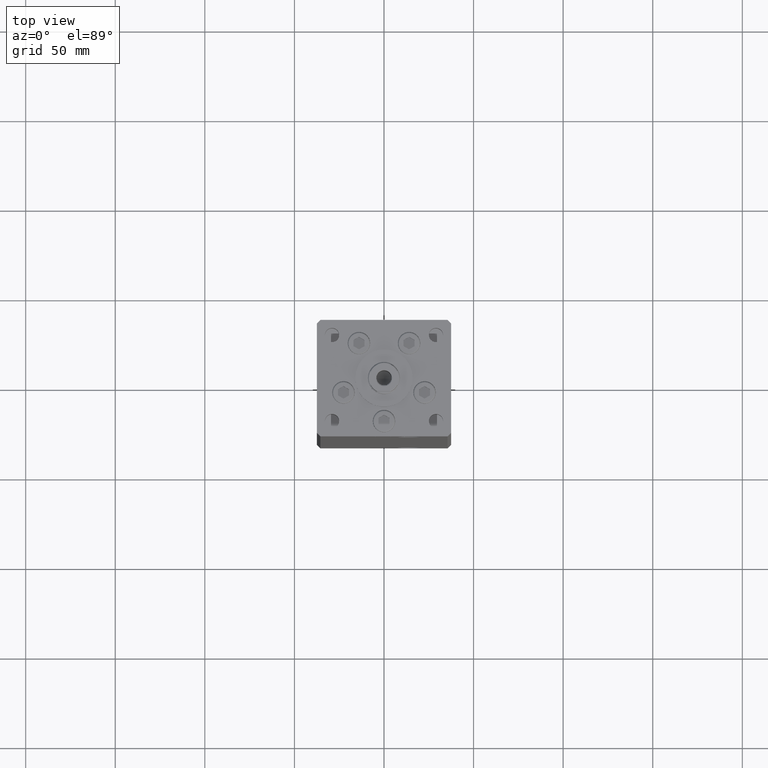
[diagram: clean part render]
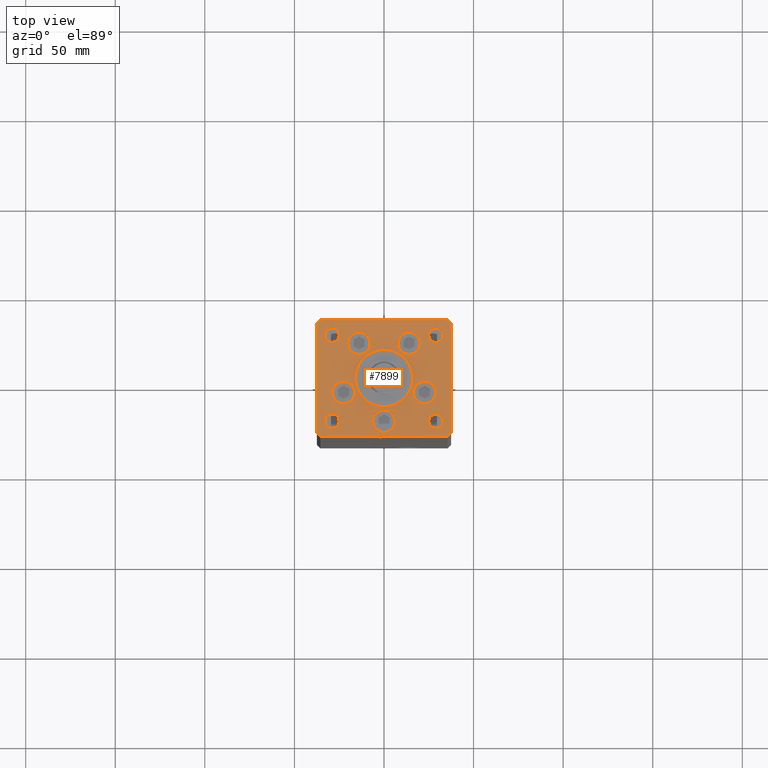
[diagram: same view with one face highlighted and labeled with its STEP entity id]
A machine part, top view. The second image highlights one B-rep face of the part: STEP entity #7899.
In plain terms, the highlighted planar face has unit normal (0, 0, 1).
Its self-contained STEP definition (entity closure, byte-faithful):
#557 = AXIS2_PLACEMENT_3D ( 'NONE', #30762, #22061, #10448 ) ;
#596 = AXIS2_PLACEMENT_3D ( 'NONE', #48682, #37566, #40740 ) ;
#688 = CARTESIAN_POINT ( 'NONE',  ( -29.00000000000000000, -23.99999999999999645, 0.000000000000000000 ) ) ;
#727 = DIRECTION ( 'NONE',  ( 2.275047181608926165E-16, -1.000000000000000000, 0.000000000000000000 ) ) ;
#1214 = ORIENTED_EDGE ( 'NONE', *, *, #48127, .T. ) ;
#1327 = CARTESIAN_POINT ( 'NONE',  ( -22.62741699796953299, -8.000000000000000000, 0.000000000000000000 ) ) ;
#1448 = FACE_BOUND ( 'NONE', #20306, .T. ) ;
#1476 = DIRECTION ( 'NONE',  ( 1.000000000000000000, 0.000000000000000000, 0.000000000000000000 ) ) ;
#2260 = CARTESIAN_POINT ( 'NONE',  ( -20.24106857963324302, 19.50000000000000000, 0.000000000000000000 ) ) ;
#2325 = EDGE_CURVE ( 'NONE', #6394, #44486, #26696, .T. ) ;
#2693 = CARTESIAN_POINT ( 'NONE',  ( 16.00000000000000355, -4.979459025271462852E-15, 0.000000000000000000 ) ) ;
#2796 = EDGE_CURVE ( 'NONE', #4544, #24338, #48583, .T. ) ;
#3111 = EDGE_CURVE ( 'NONE', #35040, #17228, #31773, .T. ) ;
#3907 = EDGE_CURVE ( 'NONE', #33941, #45500, #19987, .T. ) ;
#4052 = VECTOR ( 'NONE', #30437, 1000.000000000000000 ) ;
#4126 = ORIENTED_EDGE ( 'NONE', *, *, #27105, .T. ) ;
#4447 = DIRECTION ( 'NONE',  ( 0.000000000000000000, 0.000000000000000000, 1.000000000000000000 ) ) ;
#4544 = VERTEX_POINT ( 'NONE', #51939 ) ;
#4678 = LINE ( 'NONE', #21551, #29474 ) ;
#4769 = AXIS2_PLACEMENT_3D ( 'NONE', #30691, #9858, #6679 ) ;
#4895 = CARTESIAN_POINT ( 'NONE',  ( -35.50000000000000711, 32.49999999999997868, 0.000000000000000000 ) ) ;
#5204 = VERTEX_POINT ( 'NONE', #28867 ) ;
#5321 = ORIENTED_EDGE ( 'NONE', *, *, #44479, .F. ) ;
#5668 = CIRCLE ( 'NONE', #51192, 4.000000000000000000 ) ;
#5900 = EDGE_CURVE ( 'NONE', #36694, #5204, #20777, .T. ) ;
#5916 = FACE_BOUND ( 'NONE', #6787, .T. ) ;
#6249 = VECTOR ( 'NONE', #40369, 1000.000000000000000 ) ;
#6277 = VERTEX_POINT ( 'NONE', #15645 ) ;
#6394 = VERTEX_POINT ( 'NONE', #24848 ) ;
#6397 = LINE ( 'NONE', #34900, #35290 ) ;
#6417 = CARTESIAN_POINT ( 'NONE',  ( 35.50000000000000000, 32.49999999999999289, 0.000000000000000000 ) ) ;
#6530 = AXIS2_PLACEMENT_3D ( 'NONE', #14490, #23449, #46953 ) ;
#6679 = DIRECTION ( 'NONE',  ( 1.000000000000000000, 0.000000000000000000, 0.000000000000000000 ) ) ;
#6787 = EDGE_LOOP ( 'NONE', ( #9143, #13544 ) ) ;
#6943 = EDGE_LOOP ( 'NONE', ( #9883, #42840 ) ) ;
#7503 = EDGE_CURVE ( 'NONE', #41318, #41640, #19983, .T. ) ;
#7625 = AXIS2_PLACEMENT_3D ( 'NONE', #49043, #4447, #12884 ) ;
#7849 = EDGE_CURVE ( 'NONE', #17228, #35040, #25022, .T. ) ;
#7899 = ADVANCED_FACE ( 'NONE', ( #25707, #25453, #45509, #29414, #18322, #10142, #1448, #9878, #45770, #41537, #5916 ), #22268, .T. ) ;
#8186 = CARTESIAN_POINT ( 'NONE',  ( 37.50000000000000711, 30.50000000000001421, 0.000000000000000000 ) ) ;
#8601 = EDGE_CURVE ( 'NONE', #24338, #4544, #11579, .T. ) ;
#8905 = CARTESIAN_POINT ( 'NONE',  ( 37.50000000000000711, 30.50000000000001421, 0.000000000000000000 ) ) ;
#9031 = ORIENTED_EDGE ( 'NONE', *, *, #17766, .F. ) ;
#9143 = ORIENTED_EDGE ( 'NONE', *, *, #42042, .T. ) ;
#9146 = CARTESIAN_POINT ( 'NONE',  ( 16.37741699796953299, -8.000000000000000000, 0.000000000000000000 ) ) ;
#9545 = EDGE_CURVE ( 'NONE', #44798, #31017, #39374, .T. ) ;
#9858 = DIRECTION ( 'NONE',  ( 0.000000000000000000, 0.000000000000000000, 1.000000000000000000 ) ) ;
#9878 = FACE_BOUND ( 'NONE', #44645, .T. ) ;
#9883 = ORIENTED_EDGE ( 'NONE', *, *, #2796, .F. ) ;
#10080 = DIRECTION ( 'NONE',  ( 0.000000000000000000, 0.000000000000000000, 1.000000000000000000 ) ) ;
#10107 = AXIS2_PLACEMENT_3D ( 'NONE', #16191, #48375, #36483 ) ;
#10142 = FACE_BOUND ( 'NONE', #41950, .T. ) ;
#10448 = DIRECTION ( 'NONE',  ( 1.000000000000000000, 0.000000000000000000, 0.000000000000000000 ) ) ;
#10658 = CARTESIAN_POINT ( 'NONE',  ( -29.00000000000000000, -23.99999999999999645, 0.000000000000000000 ) ) ;
#10851 = EDGE_CURVE ( 'NONE', #38221, #30694, #14985, .T. ) ;
#11030 = ORIENTED_EDGE ( 'NONE', *, *, #44139, .F. ) ;
#11579 = CIRCLE ( 'NONE', #6530, 6.250000000000000000 ) ;
#11767 = DIRECTION ( 'NONE',  ( 0.000000000000000000, 0.000000000000000000, 1.000000000000000000 ) ) ;
#11779 = EDGE_LOOP ( 'NONE', ( #24460, #14328 ) ) ;
#12010 = ORIENTED_EDGE ( 'NONE', *, *, #2325, .F. ) ;
#12373 = VERTEX_POINT ( 'NONE', #45632 ) ;
#12523 = CIRCLE ( 'NONE', #40310, 16.00000000000000355 ) ;
#12696 = VERTEX_POINT ( 'NONE', #25502 ) ;
#12884 = DIRECTION ( 'NONE',  ( 1.000000000000000000, 0.000000000000000000, 0.000000000000000000 ) ) ;
#13055 = CARTESIAN_POINT ( 'NONE',  ( -29.00000000000000000, 24.00000000000000711, 0.000000000000000000 ) ) ;
#13276 = CIRCLE ( 'NONE', #47873, 6.250000000000000000 ) ;
#13544 = ORIENTED_EDGE ( 'NONE', *, *, #48558, .T. ) ;
#14091 = DIRECTION ( 'NONE',  ( -0.000000000000000000, 0.000000000000000000, 1.000000000000000000 ) ) ;
#14121 = CARTESIAN_POINT ( 'NONE',  ( 22.62741699796953299, -8.000000000000000000, 0.000000000000000000 ) ) ;
#14328 = ORIENTED_EDGE ( 'NONE', *, *, #10851, .F. ) ;
#14490 = CARTESIAN_POINT ( 'NONE',  ( -13.99106857963324124, 19.50000000000000000, 0.000000000000000000 ) ) ;
#14776 = DIRECTION ( 'NONE',  ( 0.7071067811865463515, 0.7071067811865487940, 0.000000000000000000 ) ) ;
#14887 = DIRECTION ( 'NONE',  ( 0.000000000000000000, 0.000000000000000000, 1.000000000000000000 ) ) ;
#14921 = CARTESIAN_POINT ( 'NONE',  ( 29.00000000000000355, -23.99999999999999645, 0.000000000000000000 ) ) ;
#14955 = ORIENTED_EDGE ( 'NONE', *, *, #5900, .F. ) ;
#14985 = CIRCLE ( 'NONE', #38613, 6.250000000000001776 ) ;
#15010 = CARTESIAN_POINT ( 'NONE',  ( -25.00000000000000000, 24.00000000000000711, 0.000000000000000000 ) ) ;
#15239 = EDGE_CURVE ( 'NONE', #6277, #38269, #4678, .T. ) ;
#15645 = CARTESIAN_POINT ( 'NONE',  ( -37.50000000000001421, 30.50000000000000000, 0.000000000000000000 ) ) ;
#15782 = CIRCLE ( 'NONE', #49450, 4.000000000000000000 ) ;
#16191 = CARTESIAN_POINT ( 'NONE',  ( 22.62741699796953299, -8.000000000000000000, 0.000000000000000000 ) ) ;
#16212 = EDGE_CURVE ( 'NONE', #30694, #38221, #48886, .T. ) ;
#16268 = EDGE_CURVE ( 'NONE', #41640, #41318, #35428, .T. ) ;
#16655 = AXIS2_PLACEMENT_3D ( 'NONE', #1327, #33777, #42200 ) ;
#16739 = ORIENTED_EDGE ( 'NONE', *, *, #15239, .T. ) ;
#16805 = DIRECTION ( 'NONE',  ( 1.000000000000000000, 0.000000000000000000, 0.000000000000000000 ) ) ;
#17188 = CARTESIAN_POINT ( 'NONE',  ( 20.24106857963324302, 19.50000000000000000, 0.000000000000000000 ) ) ;
#17228 = VERTEX_POINT ( 'NONE', #37270 ) ;
#17696 = DIRECTION ( 'NONE',  ( 0.000000000000000000, 0.000000000000000000, 1.000000000000000000 ) ) ;
#17766 = EDGE_CURVE ( 'NONE', #51369, #19840, #33768, .T. ) ;
#18322 = FACE_BOUND ( 'NONE', #24518, .T. ) ;
#18820 = VECTOR ( 'NONE', #14776, 1000.000000000000000 ) ;
#18898 = VECTOR ( 'NONE', #28004, 1000.000000000000000 ) ;
#19036 = VERTEX_POINT ( 'NONE', #8905 ) ;
#19386 = DIRECTION ( 'NONE',  ( -1.000000000000000000, 0.000000000000000000, 0.000000000000000000 ) ) ;
#19840 = VERTEX_POINT ( 'NONE', #17188 ) ;
#19983 = CIRCLE ( 'NONE', #50310, 6.250000000000000000 ) ;
#19987 = CIRCLE ( 'NONE', #48623, 3.999999999999996447 ) ;
#20306 = EDGE_LOOP ( 'NONE', ( #36116, #45353 ) ) ;
#20777 = CIRCLE ( 'NONE', #48581, 16.00000000000000355 ) ;
#21551 = CARTESIAN_POINT ( 'NONE',  ( -37.50000000000001421, 30.50000000000000000, 0.000000000000000000 ) ) ;
#21911 = LINE ( 'NONE', #30868, #18820 ) ;
#22061 = DIRECTION ( 'NONE',  ( 0.000000000000000000, 0.000000000000000000, 1.000000000000000000 ) ) ;
#22268 = PLANE ( 'NONE',  #28377 ) ;
#22593 = DIRECTION ( 'NONE',  ( 0.000000000000000000, 0.000000000000000000, 1.000000000000000000 ) ) ;
#22684 = CARTESIAN_POINT ( 'NONE',  ( 35.50000000000000000, 32.49999999999999289, 0.000000000000000000 ) ) ;
#22760 = CARTESIAN_POINT ( 'NONE',  ( 6.250000000000000000, -24.00000000000001066, 0.000000000000000000 ) ) ;
#23307 = VERTEX_POINT ( 'NONE', #28232 ) ;
#23449 = DIRECTION ( 'NONE',  ( 0.000000000000000000, 0.000000000000000000, 1.000000000000000000 ) ) ;
#23483 = EDGE_LOOP ( 'NONE', ( #5321, #9031 ) ) ;
#23543 = VERTEX_POINT ( 'NONE', #32918 ) ;
#23656 = DIRECTION ( 'NONE',  ( 1.000000000000000000, 0.000000000000000000, 0.000000000000000000 ) ) ;
#23813 = CIRCLE ( 'NONE', #36459, 3.999999999999996447 ) ;
#23816 = EDGE_LOOP ( 'NONE', ( #32167, #36139 ) ) ;
#24031 = LINE ( 'NONE', #48066, #18898 ) ;
#24338 = VERTEX_POINT ( 'NONE', #2260 ) ;
#24460 = ORIENTED_EDGE ( 'NONE', *, *, #16212, .F. ) ;
#24518 = EDGE_LOOP ( 'NONE', ( #24782, #41908 ) ) ;
#24705 = ORIENTED_EDGE ( 'NONE', *, *, #28296, .T. ) ;
#24782 = ORIENTED_EDGE ( 'NONE', *, *, #16268, .F. ) ;
#24848 = CARTESIAN_POINT ( 'NONE',  ( 33.00000000000000000, 24.00000000000000355, 0.000000000000000000 ) ) ;
#25022 = CIRCLE ( 'NONE', #48618, 4.000000000000000000 ) ;
#25453 = FACE_BOUND ( 'NONE', #6943, .T. ) ;
#25496 = CARTESIAN_POINT ( 'NONE',  ( -37.50000000000000000, -30.50000000000004263, 0.000000000000000000 ) ) ;
#25502 = CARTESIAN_POINT ( 'NONE',  ( 35.50000000000001421, -32.49999999999992184, 0.000000000000000000 ) ) ;
#25707 = FACE_BOUND ( 'NONE', #47761, .T. ) ;
#26239 = DIRECTION ( 'NONE',  ( 1.000000000000000000, 0.000000000000000000, 0.000000000000000000 ) ) ;
#26696 = CIRCLE ( 'NONE', #4769, 4.000000000000000000 ) ;
#27105 = EDGE_CURVE ( 'NONE', #38269, #50649, #31881, .T. ) ;
#28004 = DIRECTION ( 'NONE',  ( 1.000000000000000000, 1.172770800660376149E-15, 0.000000000000000000 ) ) ;
#28232 = CARTESIAN_POINT ( 'NONE',  ( -35.50000000000000711, 32.49999999999997868, 0.000000000000000000 ) ) ;
#28296 = EDGE_CURVE ( 'NONE', #23307, #6277, #33650, .T. ) ;
#28348 = DIRECTION ( 'NONE',  ( 1.000000000000000000, 0.000000000000000000, 0.000000000000000000 ) ) ;
#28377 = AXIS2_PLACEMENT_3D ( 'NONE', #37577, #14091, #26239 ) ;
#28867 = CARTESIAN_POINT ( 'NONE',  ( -16.00000000000000355, -6.938893903907228378E-15, 0.000000000000000000 ) ) ;
#28940 = EDGE_CURVE ( 'NONE', #45500, #33941, #23813, .T. ) ;
#29150 = DIRECTION ( 'NONE',  ( -1.000000000000000000, 0.000000000000000000, 0.000000000000000000 ) ) ;
#29414 = FACE_BOUND ( 'NONE', #11779, .T. ) ;
#29474 = VECTOR ( 'NONE', #727, 1000.000000000000000 ) ;
#29694 = DIRECTION ( 'NONE',  ( -0.7071067811865524577, -0.7071067811865426878, 0.000000000000000000 ) ) ;
#29812 = CARTESIAN_POINT ( 'NONE',  ( 13.99106857963324124, 19.50000000000000000, 0.000000000000000000 ) ) ;
#29870 = DIRECTION ( 'NONE',  ( 1.000000000000000000, 0.000000000000000000, 0.000000000000000000 ) ) ;
#30089 = EDGE_CURVE ( 'NONE', #12696, #12373, #21911, .T. ) ;
#30437 = DIRECTION ( 'NONE',  ( -1.000000000000000000, -1.954618001100627573E-16, 0.000000000000000000 ) ) ;
#30691 = CARTESIAN_POINT ( 'NONE',  ( 29.00000000000000000, 24.00000000000000355, 0.000000000000000000 ) ) ;
#30694 = VERTEX_POINT ( 'NONE', #36707 ) ;
#30762 = CARTESIAN_POINT ( 'NONE',  ( -13.99106857963324124, 19.50000000000000000, 0.000000000000000000 ) ) ;
#30868 = CARTESIAN_POINT ( 'NONE',  ( 35.50000000000001421, -32.49999999999992184, 0.000000000000000000 ) ) ;
#30878 = CARTESIAN_POINT ( 'NONE',  ( -35.50000000000001421, -32.50000000000000711, 0.000000000000000000 ) ) ;
#31017 = VERTEX_POINT ( 'NONE', #47165 ) ;
#31773 = CIRCLE ( 'NONE', #596, 4.000000000000000000 ) ;
#31881 = LINE ( 'NONE', #43757, #35569 ) ;
#31924 = AXIS2_PLACEMENT_3D ( 'NONE', #50309, #22593, #47152 ) ;
#32167 = ORIENTED_EDGE ( 'NONE', *, *, #28940, .F. ) ;
#32277 = CARTESIAN_POINT ( 'NONE',  ( 29.00000000000000000, 24.00000000000000355, 0.000000000000000000 ) ) ;
#32678 = CIRCLE ( 'NONE', #46286, 4.000000000000000000 ) ;
#32863 = EDGE_CURVE ( 'NONE', #19036, #40416, #39600, .T. ) ;
#32918 = CARTESIAN_POINT ( 'NONE',  ( 33.00000000000000000, -23.99999999999999645, 0.000000000000000000 ) ) ;
#32952 = ORIENTED_EDGE ( 'NONE', *, *, #48205, .F. ) ;
#33218 = ORIENTED_EDGE ( 'NONE', *, *, #9545, .F. ) ;
#33243 = ORIENTED_EDGE ( 'NONE', *, *, #34370, .T. ) ;
#33650 = LINE ( 'NONE', #4895, #51583 ) ;
#33768 = CIRCLE ( 'NONE', #7625, 6.250000000000000000 ) ;
#33777 = DIRECTION ( 'NONE',  ( 0.000000000000000000, 0.000000000000000000, 1.000000000000000000 ) ) ;
#33783 = EDGE_CURVE ( 'NONE', #50649, #12696, #24031, .T. ) ;
#33941 = VERTEX_POINT ( 'NONE', #50656 ) ;
#34147 = DIRECTION ( 'NONE',  ( 1.000000000000000000, 0.000000000000000000, 0.000000000000000000 ) ) ;
#34370 = EDGE_CURVE ( 'NONE', #40416, #23307, #34921, .T. ) ;
#34605 = DIRECTION ( 'NONE',  ( 0.000000000000000000, 0.000000000000000000, 1.000000000000000000 ) ) ;
#34900 = CARTESIAN_POINT ( 'NONE',  ( 37.50000000000000711, -30.49999999999992895, 0.000000000000000000 ) ) ;
#34921 = LINE ( 'NONE', #6417, #4052 ) ;
#35040 = VERTEX_POINT ( 'NONE', #15010 ) ;
#35290 = VECTOR ( 'NONE', #51003, 1000.000000000000000 ) ;
#35390 = CARTESIAN_POINT ( 'NONE',  ( 25.00000000000000355, -23.99999999999999645, 0.000000000000000000 ) ) ;
#35428 = CIRCLE ( 'NONE', #50574, 6.250000000000000000 ) ;
#35500 = VERTEX_POINT ( 'NONE', #35390 ) ;
#35529 = CARTESIAN_POINT ( 'NONE',  ( 0.000000000000000000, -6.938893903907228378E-15, 0.000000000000000000 ) ) ;
#35569 = VECTOR ( 'NONE', #52206, 1000.000000000000000 ) ;
#35731 = DIRECTION ( 'NONE',  ( -0.000000000000000000, -0.000000000000000000, -1.000000000000000000 ) ) ;
#36116 = ORIENTED_EDGE ( 'NONE', *, *, #3111, .T. ) ;
#36139 = ORIENTED_EDGE ( 'NONE', *, *, #3907, .F. ) ;
#36305 = ORIENTED_EDGE ( 'NONE', *, *, #32863, .T. ) ;
#36459 = AXIS2_PLACEMENT_3D ( 'NONE', #688, #47944, #16805 ) ;
#36483 = DIRECTION ( 'NONE',  ( 1.000000000000000000, 0.000000000000000000, 0.000000000000000000 ) ) ;
#36694 = VERTEX_POINT ( 'NONE', #2693 ) ;
#36707 = CARTESIAN_POINT ( 'NONE',  ( 28.87741699796953654, -8.000000000000000000, 0.000000000000000000 ) ) ;
#36744 = DIRECTION ( 'NONE',  ( 0.000000000000000000, 0.000000000000000000, 1.000000000000000000 ) ) ;
#37270 = CARTESIAN_POINT ( 'NONE',  ( -33.00000000000000000, 24.00000000000000711, 0.000000000000000000 ) ) ;
#37566 = DIRECTION ( 'NONE',  ( -0.000000000000000000, -0.000000000000000000, -1.000000000000000000 ) ) ;
#37577 = CARTESIAN_POINT ( 'NONE',  ( 0.000000000000000000, 0.000000000000000000, 0.000000000000000000 ) ) ;
#38221 = VERTEX_POINT ( 'NONE', #9146 ) ;
#38269 = VERTEX_POINT ( 'NONE', #25496 ) ;
#38553 = CARTESIAN_POINT ( 'NONE',  ( 0.000000000000000000, -24.00000000000001066, 0.000000000000000000 ) ) ;
#38613 = AXIS2_PLACEMENT_3D ( 'NONE', #14121, #41567, #1476 ) ;
#39227 = ORIENTED_EDGE ( 'NONE', *, *, #47838, .F. ) ;
#39374 = CIRCLE ( 'NONE', #16655, 6.250000000000001776 ) ;
#39600 = LINE ( 'NONE', #8186, #6249 ) ;
#39927 = DIRECTION ( 'NONE',  ( -0.000000000000000000, -0.000000000000000000, -1.000000000000000000 ) ) ;
#39942 = DIRECTION ( 'NONE',  ( -1.000000000000000000, 0.000000000000000000, 0.000000000000000000 ) ) ;
#40310 = AXIS2_PLACEMENT_3D ( 'NONE', #35529, #11767, #23656 ) ;
#40369 = DIRECTION ( 'NONE',  ( -0.7071067811865524577, 0.7071067811865426878, 0.000000000000000000 ) ) ;
#40416 = VERTEX_POINT ( 'NONE', #22684 ) ;
#40697 = DIRECTION ( 'NONE',  ( 1.000000000000000000, 0.000000000000000000, 0.000000000000000000 ) ) ;
#40740 = DIRECTION ( 'NONE',  ( -1.000000000000000000, 0.000000000000000000, 0.000000000000000000 ) ) ;
#41318 = VERTEX_POINT ( 'NONE', #46841 ) ;
#41537 = FACE_OUTER_BOUND ( 'NONE', #50679, .T. ) ;
#41567 = DIRECTION ( 'NONE',  ( 0.000000000000000000, 0.000000000000000000, 1.000000000000000000 ) ) ;
#41640 = VERTEX_POINT ( 'NONE', #22760 ) ;
#41908 = ORIENTED_EDGE ( 'NONE', *, *, #7503, .F. ) ;
#41950 = EDGE_LOOP ( 'NONE', ( #33218, #39227 ) ) ;
#42042 = EDGE_CURVE ( 'NONE', #23543, #35500, #15782, .T. ) ;
#42200 = DIRECTION ( 'NONE',  ( 1.000000000000000000, 0.000000000000000000, 0.000000000000000000 ) ) ;
#42477 = CARTESIAN_POINT ( 'NONE',  ( -25.00000000000000355, -23.99999999999999645, 0.000000000000000000 ) ) ;
#42840 = ORIENTED_EDGE ( 'NONE', *, *, #8601, .F. ) ;
#43757 = CARTESIAN_POINT ( 'NONE',  ( -37.50000000000000000, -30.50000000000004263, 0.000000000000000000 ) ) ;
#44139 = EDGE_CURVE ( 'NONE', #44486, #6394, #5668, .T. ) ;
#44479 = EDGE_CURVE ( 'NONE', #19840, #51369, #13276, .T. ) ;
#44486 = VERTEX_POINT ( 'NONE', #45389 ) ;
#44645 = EDGE_LOOP ( 'NONE', ( #12010, #11030 ) ) ;
#44798 = VERTEX_POINT ( 'NONE', #45057 ) ;
#44961 = DIRECTION ( 'NONE',  ( 0.000000000000000000, 0.000000000000000000, 1.000000000000000000 ) ) ;
#45057 = CARTESIAN_POINT ( 'NONE',  ( -16.37741699796953299, -8.000000000000000000, 0.000000000000000000 ) ) ;
#45353 = ORIENTED_EDGE ( 'NONE', *, *, #7849, .T. ) ;
#45389 = CARTESIAN_POINT ( 'NONE',  ( 24.99999999999999645, 24.00000000000000355, 0.000000000000000000 ) ) ;
#45411 = CIRCLE ( 'NONE', #31924, 6.250000000000001776 ) ;
#45500 = VERTEX_POINT ( 'NONE', #42477 ) ;
#45509 = FACE_BOUND ( 'NONE', #23483, .T. ) ;
#45632 = CARTESIAN_POINT ( 'NONE',  ( 37.50000000000000711, -30.49999999999992895, 0.000000000000000000 ) ) ;
#45770 = FACE_BOUND ( 'NONE', #23816, .T. ) ;
#46286 = AXIS2_PLACEMENT_3D ( 'NONE', #51318, #39927, #19386 ) ;
#46561 = ORIENTED_EDGE ( 'NONE', *, *, #33783, .T. ) ;
#46841 = CARTESIAN_POINT ( 'NONE',  ( -6.250000000000000000, -24.00000000000001066, 0.000000000000000000 ) ) ;
#46953 = DIRECTION ( 'NONE',  ( 1.000000000000000000, 0.000000000000000000, 0.000000000000000000 ) ) ;
#47152 = DIRECTION ( 'NONE',  ( 1.000000000000000000, 0.000000000000000000, 0.000000000000000000 ) ) ;
#47165 = CARTESIAN_POINT ( 'NONE',  ( -28.87741699796953654, -8.000000000000000000, 0.000000000000000000 ) ) ;
#47334 = CARTESIAN_POINT ( 'NONE',  ( 7.741068579633241242, 19.50000000000000000, 0.000000000000000000 ) ) ;
#47761 = EDGE_LOOP ( 'NONE', ( #32952, #14955 ) ) ;
#47838 = EDGE_CURVE ( 'NONE', #31017, #44798, #45411, .T. ) ;
#47873 = AXIS2_PLACEMENT_3D ( 'NONE', #29812, #17696, #49880 ) ;
#47944 = DIRECTION ( 'NONE',  ( 0.000000000000000000, 0.000000000000000000, 1.000000000000000000 ) ) ;
#48066 = CARTESIAN_POINT ( 'NONE',  ( -35.50000000000001421, -32.50000000000000711, 0.000000000000000000 ) ) ;
#48127 = EDGE_CURVE ( 'NONE', #12373, #19036, #6397, .T. ) ;
#48205 = EDGE_CURVE ( 'NONE', #5204, #36694, #12523, .T. ) ;
#48237 = CARTESIAN_POINT ( 'NONE',  ( 0.000000000000000000, -24.00000000000001066, 0.000000000000000000 ) ) ;
#48375 = DIRECTION ( 'NONE',  ( 0.000000000000000000, 0.000000000000000000, 1.000000000000000000 ) ) ;
#48430 = DIRECTION ( 'NONE',  ( -0.000000000000000000, -0.000000000000000000, -1.000000000000000000 ) ) ;
#48558 = EDGE_CURVE ( 'NONE', #35500, #23543, #32678, .T. ) ;
#48581 = AXIS2_PLACEMENT_3D ( 'NONE', #51143, #44961, #28348 ) ;
#48583 = CIRCLE ( 'NONE', #557, 6.250000000000000000 ) ;
#48618 = AXIS2_PLACEMENT_3D ( 'NONE', #13055, #48430, #29150 ) ;
#48623 = AXIS2_PLACEMENT_3D ( 'NONE', #10658, #14887, #34147 ) ;
#48682 = CARTESIAN_POINT ( 'NONE',  ( -29.00000000000000000, 24.00000000000000711, 0.000000000000000000 ) ) ;
#48886 = CIRCLE ( 'NONE', #10107, 6.250000000000001776 ) ;
#49043 = CARTESIAN_POINT ( 'NONE',  ( 13.99106857963324124, 19.50000000000000000, 0.000000000000000000 ) ) ;
#49450 = AXIS2_PLACEMENT_3D ( 'NONE', #14921, #35731, #39942 ) ;
#49880 = DIRECTION ( 'NONE',  ( 1.000000000000000000, 0.000000000000000000, 0.000000000000000000 ) ) ;
#50309 = CARTESIAN_POINT ( 'NONE',  ( -22.62741699796953299, -8.000000000000000000, 0.000000000000000000 ) ) ;
#50310 = AXIS2_PLACEMENT_3D ( 'NONE', #48237, #34605, #50702 ) ;
#50574 = AXIS2_PLACEMENT_3D ( 'NONE', #38553, #10080, #29870 ) ;
#50649 = VERTEX_POINT ( 'NONE', #30878 ) ;
#50656 = CARTESIAN_POINT ( 'NONE',  ( -32.99999999999999289, -23.99999999999999645, 0.000000000000000000 ) ) ;
#50679 = EDGE_LOOP ( 'NONE', ( #4126, #46561, #51347, #1214, #36305, #33243, #24705, #16739 ) ) ;
#50702 = DIRECTION ( 'NONE',  ( 1.000000000000000000, 0.000000000000000000, 0.000000000000000000 ) ) ;
#51003 = DIRECTION ( 'NONE',  ( 0.000000000000000000, 1.000000000000000000, 0.000000000000000000 ) ) ;
#51143 = CARTESIAN_POINT ( 'NONE',  ( 0.000000000000000000, -6.938893903907228378E-15, 0.000000000000000000 ) ) ;
#51192 = AXIS2_PLACEMENT_3D ( 'NONE', #32277, #36744, #40697 ) ;
#51318 = CARTESIAN_POINT ( 'NONE',  ( 29.00000000000000355, -23.99999999999999645, 0.000000000000000000 ) ) ;
#51347 = ORIENTED_EDGE ( 'NONE', *, *, #30089, .T. ) ;
#51369 = VERTEX_POINT ( 'NONE', #47334 ) ;
#51583 = VECTOR ( 'NONE', #29694, 1000.000000000000000 ) ;
#51939 = CARTESIAN_POINT ( 'NONE',  ( -7.741068579633241242, 19.50000000000000000, 0.000000000000000000 ) ) ;
#52206 = DIRECTION ( 'NONE',  ( 0.7071067811865512365, -0.7071067811865439090, 0.000000000000000000 ) ) ;